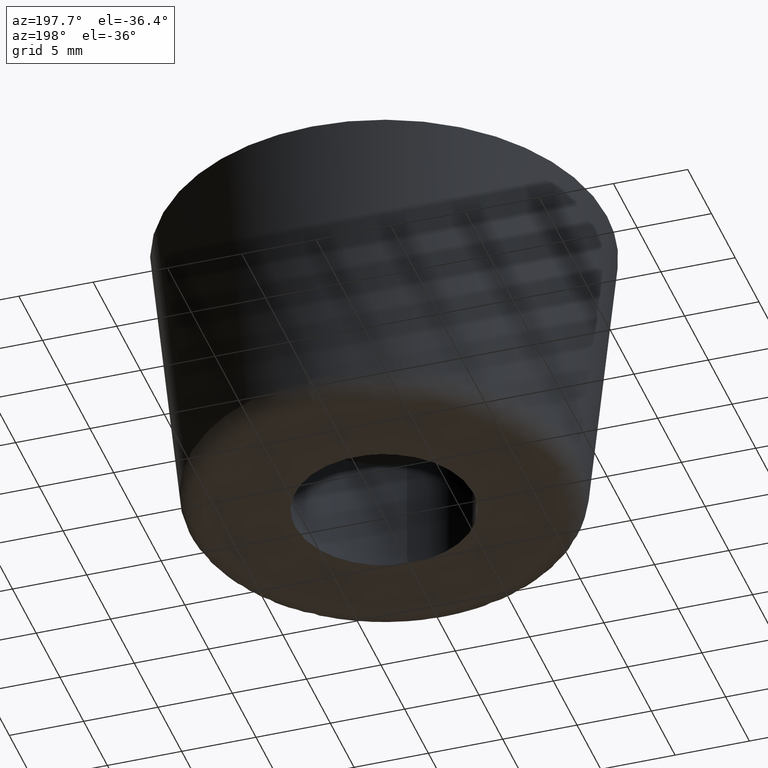
[diagram: clean part render]
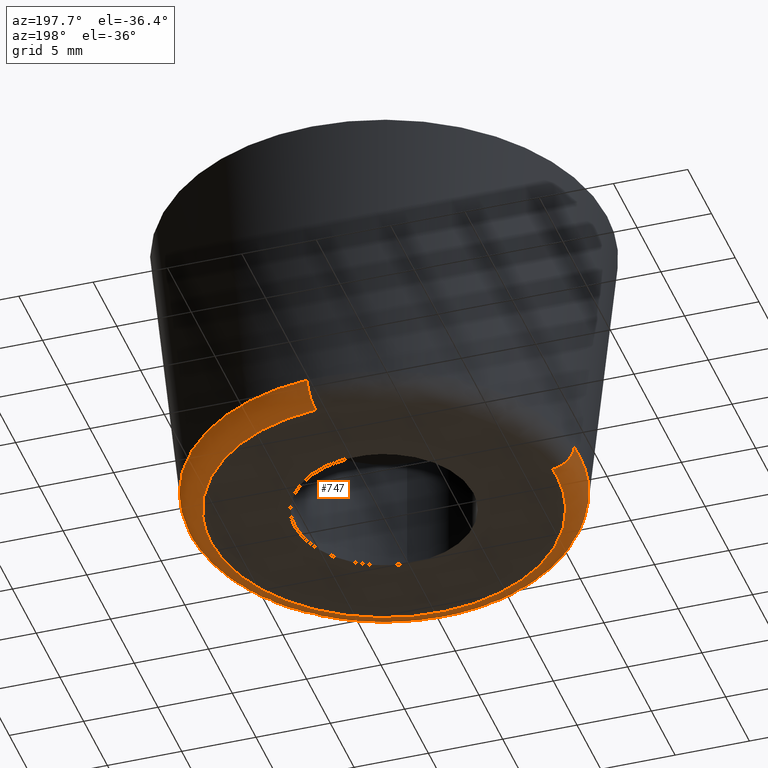
[diagram: same view with one face highlighted and labeled with its STEP entity id]
A machine part, auxiliary view. The second image highlights one B-rep face of the part: STEP entity #747.
In plain terms, the highlighted face is a freeform B-spline surface patch.
Its self-contained STEP definition (entity closure, byte-faithful):
#58=CARTESIAN_POINT('',(1.030555621959290,-13.094583491800741,1.350742231963600));
#59=VERTEX_POINT('',#58);
#60=CARTESIAN_POINT('',(-12.213839723886680,-4.832419833118689,1.350742433918875));
#61=VERTEX_POINT('',#60);
#62=CARTESIAN_POINT('',(1.030555621959290,-13.094583491800739,1.350742231963600));
#63=CARTESIAN_POINT('',(0.516073231781699,-13.135073728872834,1.350742237333666));
#64=CARTESIAN_POINT('',(-7.493435E-009,-13.135073733965189,1.350742242998451));
#65=CARTESIAN_POINT('',(-8.928885143544781,-13.135073822070973,1.350742341008227));
#66=CARTESIAN_POINT('',(-12.213839723886680,-4.832419833118689,1.350742433918874));
#74=(BOUNDED_CURVE()B_SPLINE_CURVE(2,(#62,#63,#64,#65,#66),.UNSPECIFIED.,.F.,.U.)B_SPLINE_CURVE_WITH_KNOTS((3,2,3),(0.736331436581265,0.750000000000000,0.937532615029448),.UNSPECIFIED.)CURVE()GEOMETRIC_REPRESENTATION_ITEM()RATIONAL_B_SPLINE_CURVE((0.969723639886132,0.983986281854923,1.0,0.780291875006084,0.890203263798775))REPRESENTATION_ITEM(''));
#75=EDGE_CURVE('',#59,#61,#74,.T.);
#135=CARTESIAN_POINT('',(-13.135073999999980,0.0,1.350745000000000));
#136=VERTEX_POINT('',#135);
#137=CARTESIAN_POINT('',(-12.213839723886680,-4.832419833118689,1.350742433918874));
#138=CARTESIAN_POINT('',(-13.135073880694025,-2.504020181869384,1.350743716959438));
#139=CARTESIAN_POINT('',(-13.135073999999980,0.0,1.350745000000000));
#147=(BOUNDED_CURVE()B_SPLINE_CURVE(2,(#137,#138,#139),.UNSPECIFIED.,.F.,.U.)B_SPLINE_CURVE_WITH_KNOTS((3,3),(0.937532615029448,1.0),.UNSPECIFIED.)CURVE()GEOMETRIC_REPRESENTATION_ITEM()RATIONAL_B_SPLINE_CURVE((0.890203263798775,0.926814906180464,1.0))REPRESENTATION_ITEM(''));
#148=EDGE_CURVE('',#61,#136,#147,.T.);
#197=CARTESIAN_POINT('',(13.135073999999980,0.0,1.350745000000000));
#198=VERTEX_POINT('',#197);
#199=CARTESIAN_POINT('',(13.135073999999980,0.0,1.350745000000000));
#200=CARTESIAN_POINT('',(13.135073989141043,-12.141947033812311,1.350743615981800));
#201=CARTESIAN_POINT('',(1.030555621959290,-13.094583491800739,1.350742231963600));
#209=(BOUNDED_CURVE()B_SPLINE_CURVE(2,(#199,#200,#201),.UNSPECIFIED.,.F.,.U.)B_SPLINE_CURVE_WITH_KNOTS((3,3),(0.500000000000000,0.736331436581265),.UNSPECIFIED.)CURVE()GEOMETRIC_REPRESENTATION_ITEM()RATIONAL_B_SPLINE_CURVE((1.0,0.723120499331624,0.969723639886132))REPRESENTATION_ITEM(''));
#210=EDGE_CURVE('',#198,#59,#209,.T.);
#212=CARTESIAN_POINT('',(0.989423196236340,13.097756360902920,1.350744958231219));
#213=VERTEX_POINT('',#212);
#214=CARTESIAN_POINT('',(0.989423196236340,13.097756360902922,1.350744958231218));
#215=CARTESIAN_POINT('',(13.135073999999980,12.180256157799978,1.350745000000000));
#216=CARTESIAN_POINT('',(13.135073999999980,0.0,1.350745000000000));
#224=(BOUNDED_CURVE()B_SPLINE_CURVE(2,(#214,#215,#216),.UNSPECIFIED.,.F.,.U.)B_SPLINE_CURVE_WITH_KNOTS((3,3),(0.263129840737689,0.500000000000000),.UNSPECIFIED.)CURVE()GEOMETRIC_REPRESENTATION_ITEM()RATIONAL_B_SPLINE_CURVE((0.970850634527140,0.722489346451227,1.0))REPRESENTATION_ITEM(''));
#225=EDGE_CURVE('',#213,#198,#224,.T.);
#227=CARTESIAN_POINT('',(-13.097756360903629,0.989423196243246,1.350744958243485));
#228=VERTEX_POINT('',#227);
#244=CARTESIAN_POINT('',(-13.135073999999980,0.0,1.350745000000000));
#245=CARTESIAN_POINT('',(-13.135073999999978,0.495415344607953,1.350745000000001));
#246=CARTESIAN_POINT('',(-13.097756360903636,0.989423196243246,1.350744958243485));
#254=(BOUNDED_CURVE()B_SPLINE_CURVE(2,(#244,#245,#246),.UNSPECIFIED.,.F.,.U.)B_SPLINE_CURVE_WITH_KNOTS((3,3),(0.0,0.013129840737868),.UNSPECIFIED.)CURVE()GEOMETRIC_REPRESENTATION_ITEM()RATIONAL_B_SPLINE_CURVE((1.0,0.984617434735112,0.970850634526766))REPRESENTATION_ITEM(''));
#255=EDGE_CURVE('',#136,#228,#254,.T.);
#636=CARTESIAN_POINT('',(0.989921109811301,13.104347626133709,1.449970846079858));
#637=CARTESIAN_POINT('',(14.094268735945009,12.114426516322411,1.449970846079858));
#638=CARTESIAN_POINT('',(13.104347626133709,-0.989921109811300,1.449970846079858));
#639=CARTESIAN_POINT('',(12.114426516322411,-14.094268735945008,1.449970846079858));
#640=CARTESIAN_POINT('',(-0.989921109811300,-13.104347626133709,1.449970846079858));
#641=CARTESIAN_POINT('',(-14.094268735945008,-12.114426516322419,1.449970846079858));
#642=CARTESIAN_POINT('',(-13.104347626133709,0.989921109811304,1.449970846079858));
#643=CARTESIAN_POINT('',(0.986027509868629,13.052805046972439,-0.098946298262863));
#644=CARTESIAN_POINT('',(14.038832556841070,12.066777537103812,-0.098946298262863));
#645=CARTESIAN_POINT('',(13.052805046972439,-0.986027509868629,-0.098946298262863));
#646=CARTESIAN_POINT('',(12.066777537103812,-14.038832556841067,-0.098946298262863));
#647=CARTESIAN_POINT('',(-0.986027509868628,-13.052805046972439,-0.098946298262863));
#648=CARTESIAN_POINT('',(-14.038832556841063,-12.066777537103818,-0.098946298262863));
#649=CARTESIAN_POINT('',(-13.052805046972439,0.986027509868633,-0.098946298262863));
#650=CARTESIAN_POINT('',(0.869541752280144,11.510793420183274,0.003265876902326));
#651=CARTESIAN_POINT('',(12.380335172463425,10.641251667903138,0.003265876902326));
#652=CARTESIAN_POINT('',(11.510793420183274,-0.869541752280144,0.003265876902326));
#653=CARTESIAN_POINT('',(10.641251667903138,-12.380335172463425,0.003265876902326));
#654=CARTESIAN_POINT('',(-0.869541752280143,-11.510793420183274,0.003265876902326));
#655=CARTESIAN_POINT('',(-12.380335172463420,-10.641251667903143,0.003265876902326));
#656=CARTESIAN_POINT('',(-11.510793420183274,0.869541752280147,0.003265876902326));
#664=(BOUNDED_SURFACE()B_SPLINE_SURFACE(2,2,((#636,#643,#650),(#637,#644,#651),(#638,#645,#652),(#639,#646,#653),(#640,#647,#654),(#641,#648,#655),(#642,#649,#656)),.UNSPECIFIED.,.F.,.F.,.U.)B_SPLINE_SURFACE_WITH_KNOTS((3,2,2,3),(3,3),(0.0,21.773855747073469,43.547711494146931,65.321567241220393),(0.0,2.542835993604339),.UNSPECIFIED.)GEOMETRIC_REPRESENTATION_ITEM()RATIONAL_B_SPLINE_SURFACE(((0.912663329619786,0.636266793014406,0.917081506130559),(0.645350429314444,0.449908563984304,0.648474551885690),(0.912663329619786,0.636266793014406,0.917081506130559),(0.645350429314444,0.449908563984304,0.648474551885690),(0.912663329619786,0.636266793014406,0.917081506130559),(0.645350429314444,0.449908563984304,0.648474551885690),(0.912663329619786,0.636266793014406,0.917081506130559)))REPRESENTATION_ITEM('')SURFACE());
#665=CARTESIAN_POINT('',(0.876993764689428,11.609441443112891,-9.937312E-014));
#666=VERTEX_POINT('',#665);
#667=CARTESIAN_POINT('',(11.642519000000000,0.0,0.0));
#668=VERTEX_POINT('',#667);
#669=CARTESIAN_POINT('',(0.876993764689428,11.609441443112884,-9.937312E-014));
#670=CARTESIAN_POINT('',(11.642519000000000,10.796198311530009,-9.224485E-014));
#671=CARTESIAN_POINT('',(11.642519000000000,0.0,0.0));
#679=(BOUNDED_CURVE()B_SPLINE_CURVE(2,(#669,#670,#671),.UNSPECIFIED.,.F.,.U.)B_SPLINE_CURVE_WITH_KNOTS((3,3),(0.263129840739417,0.500000000000000),.UNSPECIFIED.)CURVE()GEOMETRIC_REPRESENTATION_ITEM()RATIONAL_B_SPLINE_CURVE((0.970850634523517,0.722489346453251,1.0))REPRESENTATION_ITEM(''));
#680=EDGE_CURVE('',#666,#668,#679,.T.);
#681=ORIENTED_EDGE('',*,*,#680,.F.);
#682=CARTESIAN_POINT('',(0.989423196236340,13.097756360902920,1.350744958231219));
#683=CARTESIAN_POINT('',(0.979248531805115,12.963066496886189,1.477586E-009));
#684=CARTESIAN_POINT('',(0.876993764689428,11.609441443112885,-9.937312E-014));
#692=(BOUNDED_CURVE()B_SPLINE_CURVE(2,(#682,#683,#684),.UNSPECIFIED.,.F.,.U.)B_SPLINE_CURVE_WITH_KNOTS((3,3),(-1.710024344260570,-0.277482477633152),.UNSPECIFIED.)CURVE()GEOMETRIC_REPRESENTATION_ITEM()RATIONAL_B_SPLINE_CURVE((0.888708382971118,0.660422433206934,0.892725170638497))REPRESENTATION_ITEM(''));
#693=EDGE_CURVE('',#213,#666,#692,.T.);
#694=ORIENTED_EDGE('',*,*,#693,.F.);
#695=ORIENTED_EDGE('',*,*,#225,.T.);
#696=ORIENTED_EDGE('',*,*,#210,.T.);
#697=ORIENTED_EDGE('',*,*,#75,.T.);
#698=ORIENTED_EDGE('',*,*,#148,.T.);
#699=ORIENTED_EDGE('',*,*,#255,.T.);
#700=CARTESIAN_POINT('',(-11.609441442593070,0.876993764607335,-9.951443E-014));
#701=VERTEX_POINT('',#700);
#702=CARTESIAN_POINT('',(-13.097756360903629,0.989423196243246,1.350744958243486));
#703=CARTESIAN_POINT('',(-12.963066496813882,0.979248531799653,5.282153E-010));
#704=CARTESIAN_POINT('',(-11.609441442593074,0.876993764607335,-9.951443E-014));
#712=(BOUNDED_CURVE()B_SPLINE_CURVE(2,(#702,#703,#704),.UNSPECIFIED.,.F.,.U.)B_SPLINE_CURVE_WITH_KNOTS((3,3),(-1.710024344278077,-0.277482476884927),.UNSPECIFIED.)CURVE()GEOMETRIC_REPRESENTATION_ITEM()RATIONAL_B_SPLINE_CURVE((0.888708382976698,0.660422433084860,0.892725170881163))REPRESENTATION_ITEM(''));
#713=EDGE_CURVE('',#228,#701,#712,.T.);
#714=ORIENTED_EDGE('',*,*,#713,.T.);
#715=CARTESIAN_POINT('',(-11.642519000000000,0.0,-9.947598E-014));
#716=VERTEX_POINT('',#715);
#717=CARTESIAN_POINT('',(-11.642519000000000,0.0,-9.947598E-014));
#718=CARTESIAN_POINT('',(-11.642519000000002,0.439120675119084,-9.947598E-014));
#719=CARTESIAN_POINT('',(-11.609441442593070,0.876993764607335,-9.951443E-014));
#727=(BOUNDED_CURVE()B_SPLINE_CURVE(2,(#717,#718,#719),.UNSPECIFIED.,.F.,.U.)B_SPLINE_CURVE_WITH_KNOTS((3,3),(0.0,0.013129840738158),.UNSPECIFIED.)CURVE()GEOMETRIC_REPRESENTATION_ITEM()RATIONAL_B_SPLINE_CURVE((1.0,0.984617434734772,0.970850634526157))REPRESENTATION_ITEM(''));
#728=EDGE_CURVE('',#716,#701,#727,.T.);
#729=ORIENTED_EDGE('',*,*,#728,.F.);
#730=CARTESIAN_POINT('',(11.642519000000000,0.0,0.0));
#731=CARTESIAN_POINT('',(11.642518999999998,-11.642518999999998,-9.947598E-014));
#732=CARTESIAN_POINT('',(0.0,-11.642519000000000,-9.947598E-014));
#733=CARTESIAN_POINT('',(-11.642518999999998,-11.642518999999998,-9.947598E-014));
#734=CARTESIAN_POINT('',(-11.642519000000000,0.0,-9.947598E-014));
#742=(BOUNDED_CURVE()B_SPLINE_CURVE(2,(#730,#731,#732,#733,#734),.UNSPECIFIED.,.F.,.U.)B_SPLINE_CURVE_WITH_KNOTS((3,2,3),(0.500000000000000,0.750000000000000,1.0),.UNSPECIFIED.)CURVE()GEOMETRIC_REPRESENTATION_ITEM()RATIONAL_B_SPLINE_CURVE((1.0,0.707106781186547,1.0,0.707106781186547,1.0))REPRESENTATION_ITEM(''));
#743=EDGE_CURVE('',#668,#716,#742,.T.);
#744=ORIENTED_EDGE('',*,*,#743,.F.);
#745=EDGE_LOOP('',(#681,#694,#695,#696,#697,#698,#699,#714,#729,#744));
#746=FACE_OUTER_BOUND('',#745,.T.);
#747=ADVANCED_FACE('',(#746),#664,.T.);